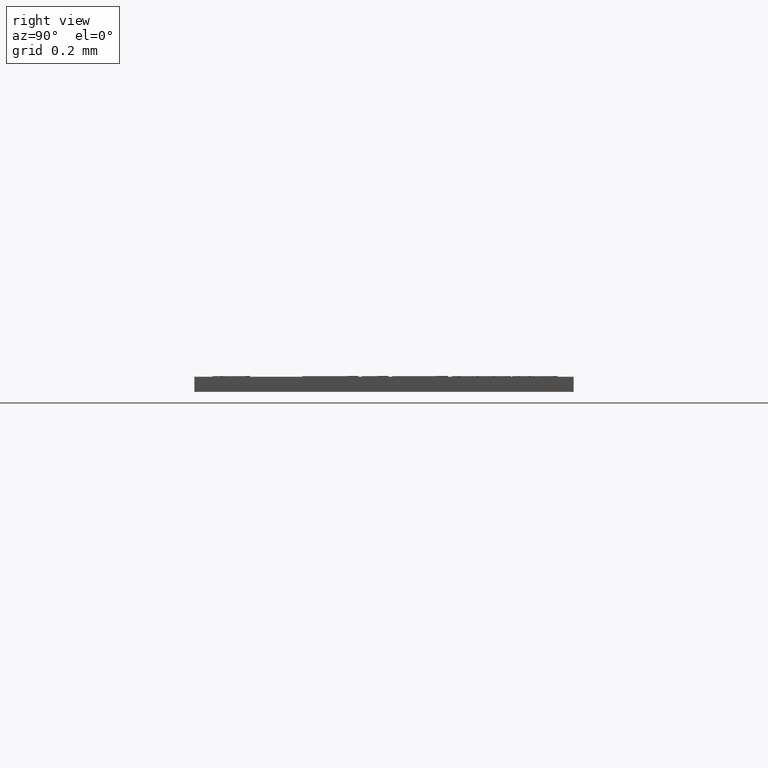
[diagram: clean part render]
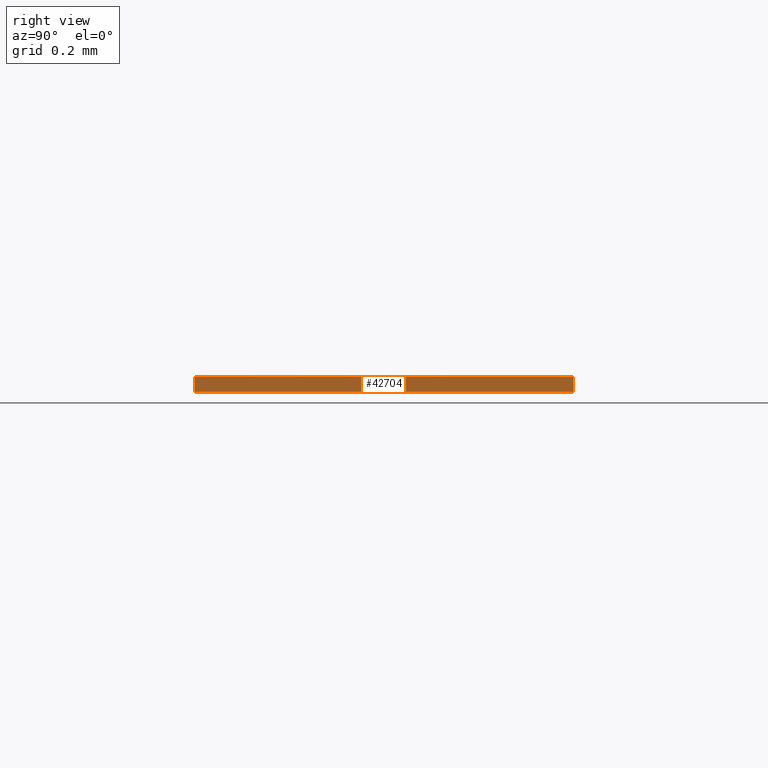
[diagram: same view with one face highlighted and labeled with its STEP entity id]
A machine part, right view. The second image highlights one B-rep face of the part: STEP entity #42704.
In plain terms, the highlighted planar face has unit normal (1, 0, 0).
Its self-contained STEP definition (entity closure, byte-faithful):
#39046=CARTESIAN_POINT('',(0.081102362204724,0.0,0.001968503937008));
#39047=VERTEX_POINT('',#39046);
#39056=CARTESIAN_POINT('',(0.081102362204724,0.049212598425197,0.001968503937008));
#39057=VERTEX_POINT('',#39056);
#39058=CARTESIAN_POINT('',(0.081102362204724,0.049212598425197,0.001968503937008));
#39059=DIRECTION('',(0.0,-1.0,0.0));
#39060=VECTOR('',#39059,0.049212598425197);
#39061=LINE('',#39058,#39060);
#39062=EDGE_CURVE('',#39057,#39047,#39061,.T.);
#40558=CARTESIAN_POINT('',(0.081102362204724,0.0,0.0));
#40559=VERTEX_POINT('',#40558);
#40566=CARTESIAN_POINT('',(0.081102362204724,0.0,0.0));
#40567=DIRECTION('',(0.0,0.0,1.0));
#40568=VECTOR('',#40567,0.001968503937008);
#40569=LINE('',#40566,#40568);
#40570=EDGE_CURVE('',#40559,#39047,#40569,.T.);
#42670=CARTESIAN_POINT('',(0.081102362204724,0.049212598425197,0.0));
#42671=VERTEX_POINT('',#42670);
#42672=CARTESIAN_POINT('',(0.081102362204724,0.049212598425197,0.0));
#42673=DIRECTION('',(0.0,0.0,1.0));
#42674=VECTOR('',#42673,0.001968503937008);
#42675=LINE('',#42672,#42674);
#42676=EDGE_CURVE('',#42671,#39057,#42675,.T.);
#42688=CARTESIAN_POINT('',(0.081102362204724,0.049212598425197,0.0));
#42689=DIRECTION('',(1.0,0.0,0.0));
#42690=DIRECTION('',(0.0,0.0,-1.0));
#42691=AXIS2_PLACEMENT_3D('',#42688,#42689,#42690);
#42692=PLANE('',#42691);
#42693=ORIENTED_EDGE('',*,*,#39062,.T.);
#42694=ORIENTED_EDGE('',*,*,#40570,.F.);
#42695=CARTESIAN_POINT('',(0.081102362204724,0.0,0.0));
#42696=DIRECTION('',(0.0,1.0,0.0));
#42697=VECTOR('',#42696,0.049212598425197);
#42698=LINE('',#42695,#42697);
#42699=EDGE_CURVE('',#40559,#42671,#42698,.T.);
#42700=ORIENTED_EDGE('',*,*,#42699,.T.);
#42701=ORIENTED_EDGE('',*,*,#42676,.T.);
#42702=EDGE_LOOP('',(#42693,#42694,#42700,#42701));
#42703=FACE_OUTER_BOUND('',#42702,.T.);
#42704=ADVANCED_FACE('',(#42703),#42692,.T.);